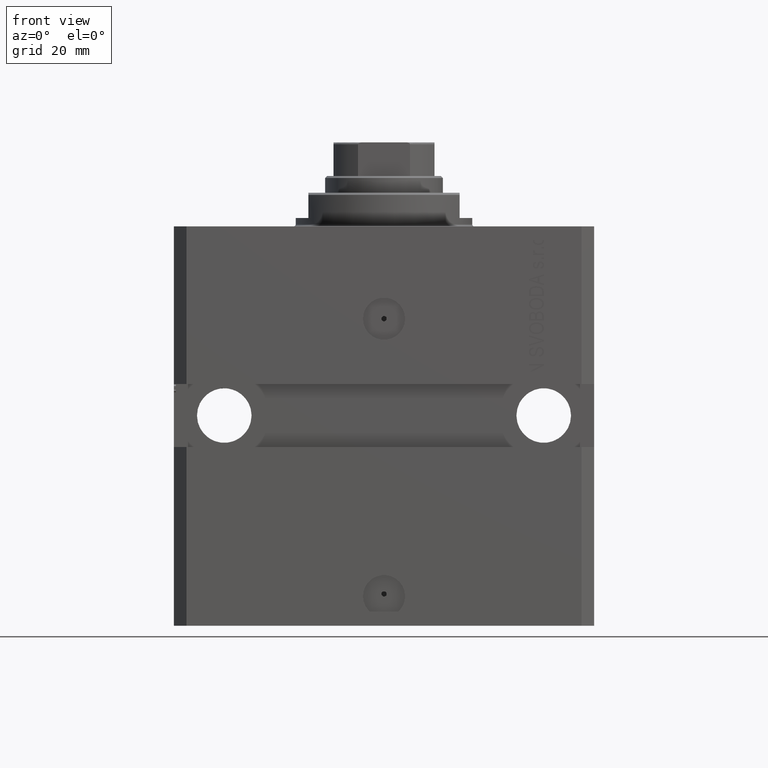
[diagram: clean part render]
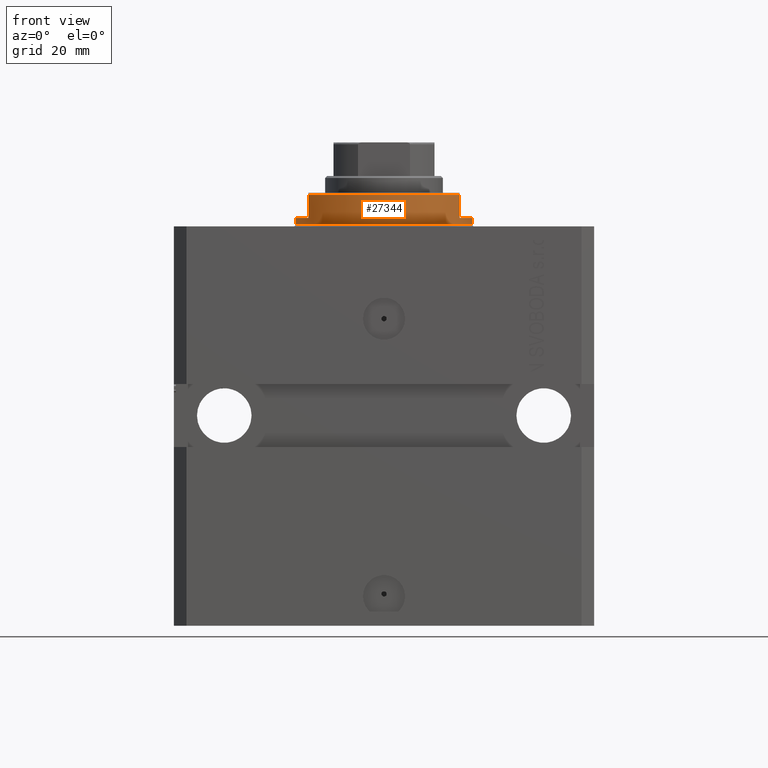
[diagram: same view with one face highlighted and labeled with its STEP entity id]
A machine part, front view. The second image highlights one B-rep face of the part: STEP entity #27344.
In plain terms, the highlighted cylindrical surface (partial cylindrical patch) has radius 21 mm, axis along (0, 0, -1).
Its self-contained STEP definition (entity closure, byte-faithful):
#707 = EDGE_CURVE ( 'NONE', #9095, #839, #38745, .T. ) ;
#839 = VERTEX_POINT ( 'NONE', #40690 ) ;
#952 = VERTEX_POINT ( 'NONE', #4773 ) ;
#1851 = ORIENTED_EDGE ( 'NONE', *, *, #33744, .T. ) ;
#1881 = CIRCLE ( 'NONE', #28850, 21.00000000000000000 ) ;
#2565 = AXIS2_PLACEMENT_3D ( 'NONE', #44835, #11811, #15662 ) ;
#2842 = CARTESIAN_POINT ( 'NONE',  ( 0.000000000000000000, 0.000000000000000000, -2.000000000000000000 ) ) ;
#4773 = CARTESIAN_POINT ( 'NONE',  ( -18.00000000000000000, -10.81665382639197048, -7.500000000000017764 ) ) ;
#7031 = CARTESIAN_POINT ( 'NONE',  ( 0.000000000000000000, 0.000000000000000000, -0.5000000000000004441 ) ) ;
#8637 = DIRECTION ( 'NONE',  ( -0.000000000000000000, -0.000000000000000000, 1.000000000000000000 ) ) ;
#9084 = VERTEX_POINT ( 'NONE', #40002 ) ;
#9095 = VERTEX_POINT ( 'NONE', #10836 ) ;
#9182 = CIRCLE ( 'NONE', #14594, 21.00000000000000000 ) ;
#9444 = CARTESIAN_POINT ( 'NONE',  ( 18.00000000000000000, -10.81665382639197048, -8.000000000000000000 ) ) ;
#10120 = DIRECTION ( 'NONE',  ( 1.000000000000000000, 0.000000000000000000, 0.000000000000000000 ) ) ;
#10372 = CARTESIAN_POINT ( 'NONE',  ( 21.00000000000000000, 0.000000000000000000, -8.000000000000000000 ) ) ;
#10789 = EDGE_CURVE ( 'NONE', #41873, #9084, #32937, .T. ) ;
#10836 = CARTESIAN_POINT ( 'NONE',  ( 21.00000000000000000, 0.000000000000000000, -2.000000000000000000 ) ) ;
#11811 = DIRECTION ( 'NONE',  ( 0.000000000000000000, 0.000000000000000000, -1.000000000000000000 ) ) ;
#12157 = ORIENTED_EDGE ( 'NONE', *, *, #34224, .T. ) ;
#12221 = VECTOR ( 'NONE', #30696, 1000.000000000000000 ) ;
#12738 = EDGE_CURVE ( 'NONE', #41873, #952, #12836, .T. ) ;
#12836 = LINE ( 'NONE', #19598, #12221 ) ;
#13472 = EDGE_CURVE ( 'NONE', #24707, #43895, #9182, .T. ) ;
#14594 = AXIS2_PLACEMENT_3D ( 'NONE', #7031, #28040, #21041 ) ;
#15139 = ORIENTED_EDGE ( 'NONE', *, *, #10789, .F. ) ;
#15662 = DIRECTION ( 'NONE',  ( -1.000000000000000000, 0.000000000000000000, 0.000000000000000000 ) ) ;
#16912 = DIRECTION ( 'NONE',  ( 0.000000000000000000, 0.000000000000000000, -1.000000000000000000 ) ) ;
#17421 = DIRECTION ( 'NONE',  ( -1.000000000000000000, 0.000000000000000000, 0.000000000000000000 ) ) ;
#17505 = CARTESIAN_POINT ( 'NONE',  ( 21.00000000000000000, 0.000000000000000000, -0.5000000000000004441 ) ) ;
#18249 = CYLINDRICAL_SURFACE ( 'NONE', #38767, 21.00000000000000000 ) ;
#18474 = FACE_OUTER_BOUND ( 'NONE', #22478, .T. ) ;
#19598 = CARTESIAN_POINT ( 'NONE',  ( -18.00000000000000000, -10.81665382639197048, -8.000000000000000000 ) ) ;
#20452 = DIRECTION ( 'NONE',  ( -1.000000000000000000, 0.000000000000000000, 0.000000000000000000 ) ) ;
#21041 = DIRECTION ( 'NONE',  ( 1.000000000000000000, 0.000000000000000000, 0.000000000000000000 ) ) ;
#21131 = VECTOR ( 'NONE', #16912, 1000.000000000000000 ) ;
#21862 = CARTESIAN_POINT ( 'NONE',  ( 0.000000000000000000, 0.000000000000000000, -8.000000000000000000 ) ) ;
#22171 = DIRECTION ( 'NONE',  ( -0.000000000000000000, -0.000000000000000000, 1.000000000000000000 ) ) ;
#22478 = EDGE_LOOP ( 'NONE', ( #41592, #15139, #45240, #1851, #39802, #27139, #12157, #32711 ) ) ;
#24707 = VERTEX_POINT ( 'NONE', #17505 ) ;
#25038 = CARTESIAN_POINT ( 'NONE',  ( 18.00000000000000000, -10.81665382639197048, -7.500000000000016875 ) ) ;
#27139 = ORIENTED_EDGE ( 'NONE', *, *, #707, .F. ) ;
#27344 = ADVANCED_FACE ( 'NONE', ( #18474 ), #18249, .T. ) ;
#27461 = LINE ( 'NONE', #33948, #43479 ) ;
#28040 = DIRECTION ( 'NONE',  ( -0.000000000000000000, -0.000000000000000000, -1.000000000000000000 ) ) ;
#28850 = AXIS2_PLACEMENT_3D ( 'NONE', #32589, #47035, #17421 ) ;
#30696 = DIRECTION ( 'NONE',  ( 0.000000000000000000, 0.000000000000000000, -1.000000000000000000 ) ) ;
#31626 = LINE ( 'NONE', #9444, #21131 ) ;
#32589 = CARTESIAN_POINT ( 'NONE',  ( 0.000000000000000000, 0.000000000000000000, -7.500000000000016875 ) ) ;
#32711 = ORIENTED_EDGE ( 'NONE', *, *, #13472, .T. ) ;
#32937 = CIRCLE ( 'NONE', #42181, 21.00000000000000000 ) ;
#32951 = EDGE_CURVE ( 'NONE', #839, #36278, #31626, .T. ) ;
#33744 = EDGE_CURVE ( 'NONE', #952, #36278, #1881, .T. ) ;
#33948 = CARTESIAN_POINT ( 'NONE',  ( -21.00000000000000000, 2.571758278209441661E-15, -8.000000000000000000 ) ) ;
#34224 = EDGE_CURVE ( 'NONE', #9095, #24707, #46990, .T. ) ;
#36278 = VERTEX_POINT ( 'NONE', #25038 ) ;
#37749 = CARTESIAN_POINT ( 'NONE',  ( -21.00000000000000000, 2.571758278209441661E-15, -0.5000000000000004441 ) ) ;
#38440 = CARTESIAN_POINT ( 'NONE',  ( -18.00000000000000000, -10.81665382639197048, -2.000000000000000000 ) ) ;
#38745 = CIRCLE ( 'NONE', #2565, 21.00000000000000000 ) ;
#38767 = AXIS2_PLACEMENT_3D ( 'NONE', #21862, #43140, #10120 ) ;
#39802 = ORIENTED_EDGE ( 'NONE', *, *, #32951, .F. ) ;
#40002 = CARTESIAN_POINT ( 'NONE',  ( -21.00000000000000000, 2.571758278209441661E-15, -2.000000000000000000 ) ) ;
#40690 = CARTESIAN_POINT ( 'NONE',  ( 18.00000000000000000, -10.81665382639197048, -2.000000000000000000 ) ) ;
#41592 = ORIENTED_EDGE ( 'NONE', *, *, #45772, .F. ) ;
#41873 = VERTEX_POINT ( 'NONE', #38440 ) ;
#42181 = AXIS2_PLACEMENT_3D ( 'NONE', #2842, #46692, #20452 ) ;
#42725 = VECTOR ( 'NONE', #22171, 1000.000000000000000 ) ;
#43140 = DIRECTION ( 'NONE',  ( -0.000000000000000000, -0.000000000000000000, 1.000000000000000000 ) ) ;
#43479 = VECTOR ( 'NONE', #8637, 1000.000000000000000 ) ;
#43895 = VERTEX_POINT ( 'NONE', #37749 ) ;
#44835 = CARTESIAN_POINT ( 'NONE',  ( 0.000000000000000000, 0.000000000000000000, -2.000000000000000000 ) ) ;
#45240 = ORIENTED_EDGE ( 'NONE', *, *, #12738, .T. ) ;
#45772 = EDGE_CURVE ( 'NONE', #9084, #43895, #27461, .T. ) ;
#46692 = DIRECTION ( 'NONE',  ( 0.000000000000000000, 0.000000000000000000, -1.000000000000000000 ) ) ;
#46990 = LINE ( 'NONE', #10372, #42725 ) ;
#47035 = DIRECTION ( 'NONE',  ( 0.000000000000000000, 0.000000000000000000, 1.000000000000000000 ) ) ;